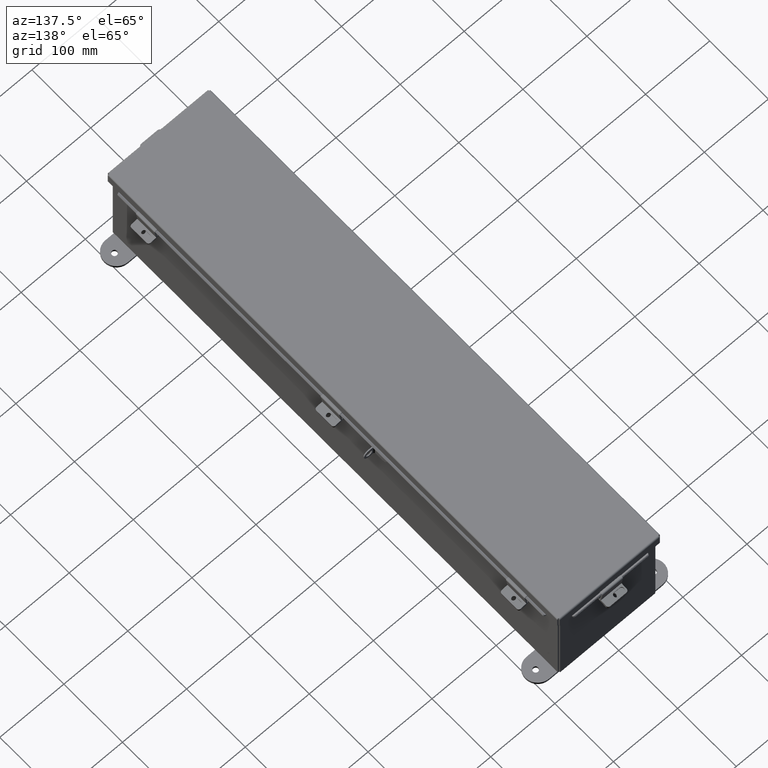
[diagram: clean part render]
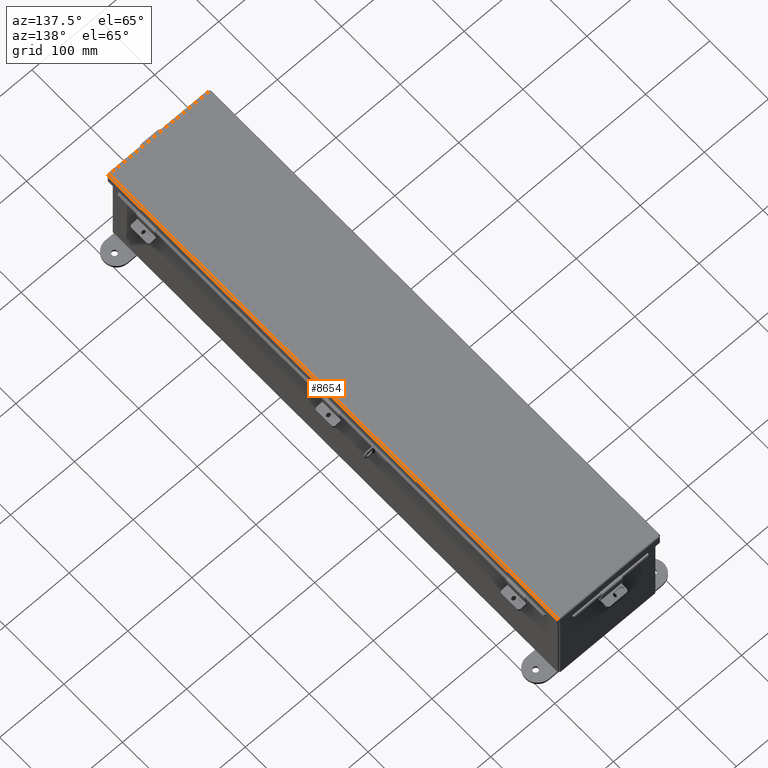
[diagram: same view with one face highlighted and labeled with its STEP entity id]
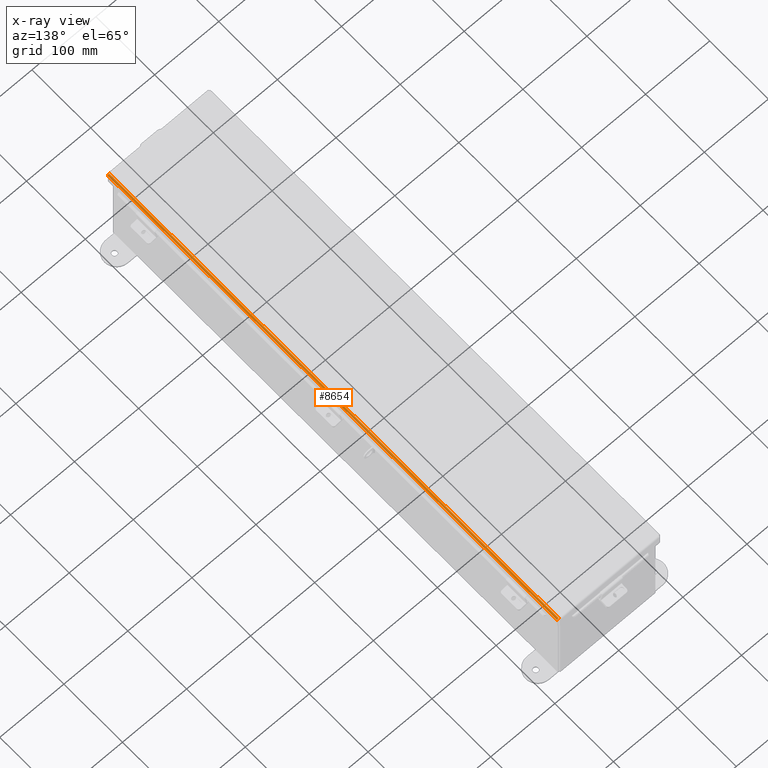
[diagram: x-ray of the same camera — body ghosted, the highlighted face saturated]
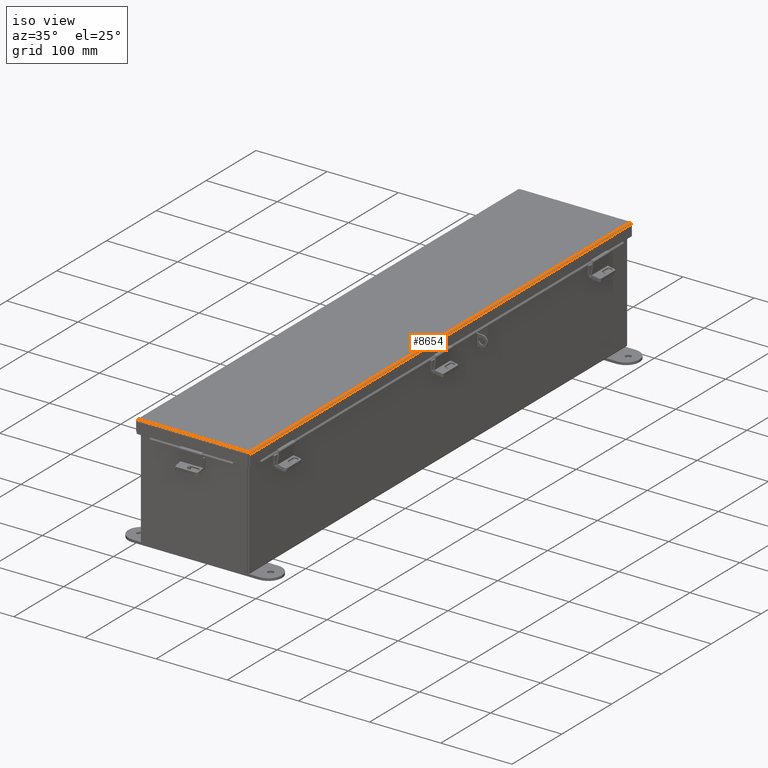
[diagram: same view with one face highlighted and labeled with its STEP entity id]
A machine part, auxiliary view. The second image highlights one B-rep face of the part: STEP entity #8654.
The next image is the same camera in x-ray: the body ghosted, the highlighted face saturated — about 0% of this face is hidden behind the body in this view.
A second angle (iso view) of the same face is appended — the face is thin or edge-on in the first view.
In plain terms, the highlighted cylindrical surface (edge-blend (fillet) strip) has radius 2.2276 mm, axis along (-0, -1, 0).
Its self-contained STEP definition (entity closure, byte-faithful):
#521 = CARTESIAN_POINT ( 'NONE',  ( -3.156250000000008900, -15.07447893218813000, 0.01300000000000120000 ) ) ;
#559 = DIRECTION ( 'NONE',  ( -8.757496902906192300E-031, -1.000000000000000000, -2.529285277364869100E-029 ) ) ;
#838 = ORIENTED_EDGE ( 'NONE', *, *, #11066, .F. ) ;
#914 = CARTESIAN_POINT ( 'NONE',  ( -3.068550000000009000, 15.06855000000000400, -0.07470000000000015500 ) ) ;
#1046 = EDGE_LOOP ( 'NONE', ( #2631, #9237, #2202, #838 ) ) ;
#1567 = CARTESIAN_POINT ( 'NONE',  ( -3.156250000000008900, -15.07398485450577900, 0.001520096845010411100 ) ) ;
#2202 = ORIENTED_EDGE ( 'NONE', *, *, #9617, .T. ) ;
#2584 = CARTESIAN_POINT ( 'NONE',  ( -3.068550000000008500, -15.07447893218813000, 0.01300000000000010700 ) ) ;
#2631 = ORIENTED_EDGE ( 'NONE', *, *, #22087, .F. ) ;
#3051 = CYLINDRICAL_SURFACE ( 'NONE', #19370, 0.08770000000000026400 ) ;
#3085 = CARTESIAN_POINT ( 'NONE',  ( -3.156250000000008900, 15.15625000000000400, 0.01300000000000010700 ) ) ;
#3399 = CARTESIAN_POINT ( 'NONE',  ( -3.112717384578534800, 15.07052631072938500, -0.06363106625866932200 ) ) ;
#3622 = VECTOR ( 'NONE', #23266, 39.37007874015748100 ) ;
#5341 = CARTESIAN_POINT ( 'NONE',  ( -3.068550000000009000, 15.06855000000000400, -0.07470000000000015500 ) ) ;
#5428 = CARTESIAN_POINT ( 'NONE',  ( -3.138680782078327300, 15.07200854377641800, -0.04089574734180203400 ) ) ;
#5692 = CARTESIAN_POINT ( 'NONE',  ( -3.145181066258678100, -15.07250262145875100, -0.03116738457852605300 ) ) ;
#5895 = VERTEX_POINT ( 'NONE', #22769 ) ;
#5916 = DIRECTION ( 'NONE',  ( 8.757496902906192300E-031, 1.000000000000000000, 2.529285277364869100E-029 ) ) ;
#6634 = VERTEX_POINT ( 'NONE', #521 ) ;
#7445 = CARTESIAN_POINT ( 'NONE',  ( -3.153967403743819000, 15.07349077682345500, -0.009955289458312088800 ) ) ;
#7731 = CARTESIAN_POINT ( 'NONE',  ( -3.122445747341809700, -15.07102038841171400, -0.05713078207831981400 ) ) ;
#8654 = ADVANCED_FACE ( 'NONE', ( #24569 ), #3051, .T. ) ;
#9001 = LINE ( 'NONE', #3085, #3622 ) ;
#9237 = ORIENTED_EDGE ( 'NONE', *, *, #24718, .F. ) ;
#9383 = CARTESIAN_POINT ( 'NONE',  ( -3.080029903155002000, 15.06904407768234400, -0.07470000000000033600 ) ) ;
#9476 = CARTESIAN_POINT ( 'NONE',  ( -3.156250000000008900, 15.07447893218813700, 0.01300000000000010700 ) ) ;
#9617 = EDGE_CURVE ( 'NONE', #6634, #5895, #9001, .T. ) ;
#9701 = LINE ( 'NONE', #18071, #15156 ) ;
#9738 = CARTESIAN_POINT ( 'NONE',  ( -3.091505289458317900, -15.06953815536468800, -0.07241740374381150400 ) ) ;
#11066 = EDGE_CURVE ( 'NONE', #22326, #5895, #25169, .T. ) ;
#11831 = CARTESIAN_POINT ( 'NONE',  ( -3.068550000000008500, -15.06854999999999500, -0.07470000000000015500 ) ) ;
#15156 = VECTOR ( 'NONE', #5916, 39.37007874015748100 ) ;
#15540 = CARTESIAN_POINT ( 'NONE',  ( -3.091505289458317000, 15.06953815536469900, -0.07241740374381176700 ) ) ;
#17579 = CARTESIAN_POINT ( 'NONE',  ( -3.122445747341807500, 15.07102038841172800, -0.05713078207832163900 ) ) ;
#17858 = CARTESIAN_POINT ( 'NONE',  ( -3.153967403743821700, -15.07349077682344300, -0.009955289458306187300 ) ) ;
#17868 = B_SPLINE_CURVE_WITH_KNOTS ( 'NONE', 3,
 ( #25873, #1567, #17858, #5692, #19877, #7731, #21909, #9738, #23930, #11831 ),
 .UNSPECIFIED., .F., .F.,
 ( 4, 2, 2, 2, 4 ),
 ( 0.0000000000000000000, 0.2500000000000000000, 0.5000000000000000000, 0.7500000000000000000, 1.000000000000000000 ),
 .UNSPECIFIED. ) ;
#17945 = VERTEX_POINT ( 'NONE', #24046 ) ;
#18071 = CARTESIAN_POINT ( 'NONE',  ( -3.068550000000008500, -15.07447893218813000, -0.07470000000000015500 ) ) ;
#19370 = AXIS2_PLACEMENT_3D ( 'NONE', #2584, #559, #22727 ) ;
#19600 = CARTESIAN_POINT ( 'NONE',  ( -3.145181066258675400, 15.07250262145876400, -0.03116738457853029900 ) ) ;
#19877 = CARTESIAN_POINT ( 'NONE',  ( -3.138680782078330000, -15.07200854377640700, -0.04089574734179866900 ) ) ;
#21629 = CARTESIAN_POINT ( 'NONE',  ( -3.156250000000008900, 15.07398485450579400, 0.001520096845003703600 ) ) ;
#21909 = CARTESIAN_POINT ( 'NONE',  ( -3.112717384578537400, -15.07052631072937400, -0.06363106625866818400 ) ) ;
#22087 = EDGE_CURVE ( 'NONE', #17945, #22326, #9701, .T. ) ;
#22326 = VERTEX_POINT ( 'NONE', #914 ) ;
#22727 = DIRECTION ( 'NONE',  ( -1.000000000000000000, 0.0000000000000000000, -3.577373637655407700E-015 ) ) ;
#22769 = CARTESIAN_POINT ( 'NONE',  ( -3.156250000000008900, 15.07447893218813700, 0.01300000000000010700 ) ) ;
#23266 = DIRECTION ( 'NONE',  ( 1.002529191948047200E-030, 1.000000000000000000, -3.604912816379201100E-017 ) ) ;
#23930 = CARTESIAN_POINT ( 'NONE',  ( -3.080029903155000700, -15.06904407768234200, -0.07470000000000034900 ) ) ;
#24046 = CARTESIAN_POINT ( 'NONE',  ( -3.068550000000008500, -15.06854999999999500, -0.07470000000000015500 ) ) ;
#24569 = FACE_OUTER_BOUND ( 'NONE', #1046, .T. ) ;
#24718 = EDGE_CURVE ( 'NONE', #6634, #17945, #17868, .T. ) ;
#25169 = B_SPLINE_CURVE_WITH_KNOTS ( 'NONE', 3,
 ( #5341, #9383, #15540, #3399, #17579, #5428, #19600, #7445, #21629, #9476 ),
 .UNSPECIFIED., .F., .F.,
 ( 4, 2, 2, 2, 4 ),
 ( 0.0000000000000000000, 0.2500000000000000000, 0.5000000000000000000, 0.7500000000000000000, 1.000000000000000000 ),
 .UNSPECIFIED. ) ;
#25873 = CARTESIAN_POINT ( 'NONE',  ( -3.156250000000008900, -15.07447893218813000, 0.01300000000000120000 ) ) ;